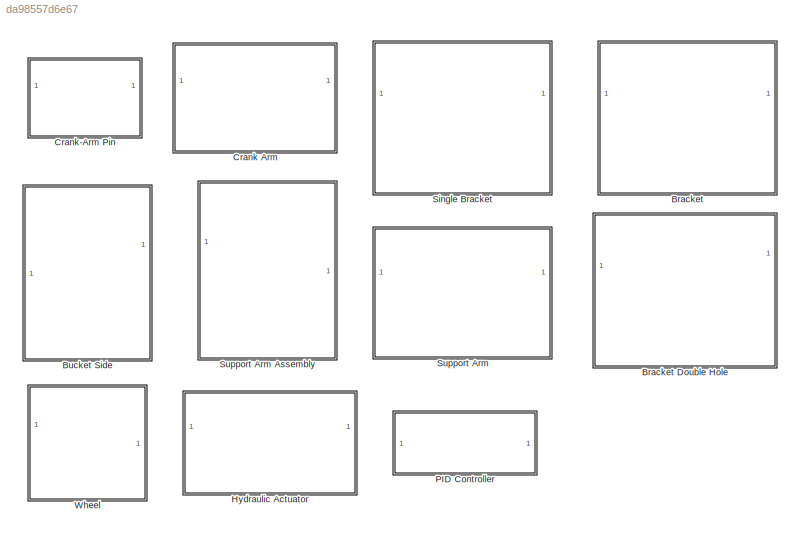
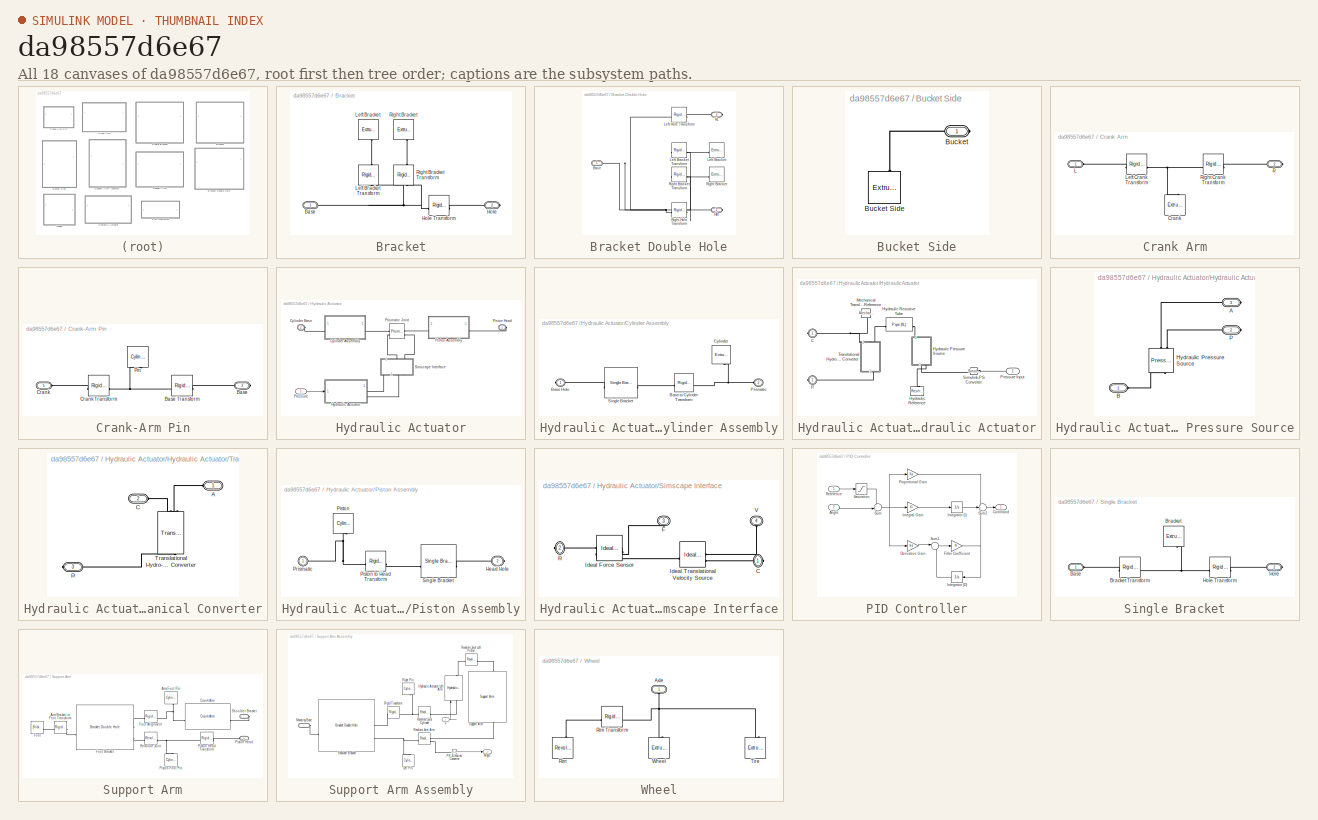
[diagram: thumbnail index - all 18 canvases of the model, root first then tree order]
MODEL slx_da98557d6e67
KIND library
CONFIG EnableMultiTasking = on
CONFIG SolverName = ode45
BLOCK [SubSystem] Bracket
BLOCK [SubSystem] Bracket Double Hole
BLOCK [PMIOPort] Bracket Double Hole/Base
  Side = Left
BLOCK [PMIOPort] Bracket Double Hole/HL
  Port = 3
  Side = Right
BLOCK [PMIOPort] Bracket Double Hole/HR
  Port = 2
  Side = Right
BLOCK [Reference] Bracket Double Hole/Left Bracket  REF=sm_lib/Body Elements/Extruded Solid
  NameLocation = top
  SourceBlock = sm_lib/Body Elements/Extruded Solid
  SourceType = Extruded Solid
BLOCK [Reference] Bracket Double Hole/Left Bracket Transform  REF=sm_lib/Frames and
Transforms/Rigid
Transform
  NameLocation = top
  SourceBlock = sm_lib/Frames and\nTransforms/Rigid\nTransform
  SourceType = Rigid\nTransform
BLOCK [Reference] Bracket Double Hole/Left Hole Transform  REF=sm_lib/Frames and
Transforms/Rigid
Transform
  SourceBlock = sm_lib/Frames and\nTransforms/Rigid\nTransform
  SourceType = Rigid\nTransform
BLOCK [Reference] Bracket Double Hole/Right Bracket  REF=sm_lib/Body Elements/Extruded Solid
  SourceBlock = sm_lib/Body Elements/Extruded Solid
  SourceType = Extruded Solid
BLOCK [Reference] Bracket Double Hole/Right Bracket Transform  REF=sm_lib/Frames and
Transforms/Rigid
Transform
  SourceBlock = sm_lib/Frames and\nTransforms/Rigid\nTransform
  SourceType = Rigid\nTransform
BLOCK [Reference] Bracket Double Hole/Right Hole Transform  REF=sm_lib/Frames and
Transforms/Rigid
Transform
  SourceBlock = sm_lib/Frames and\nTransforms/Rigid\nTransform
  SourceType = Rigid\nTransform
BLOCK [PMIOPort] Bracket/Base
  Side = Left
BLOCK [PMIOPort] Bracket/Hole
  NameLocation = top
  Port = 2
  Side = Right
BLOCK [Reference] Bracket/Hole Transform  REF=sm_lib/Frames and
Transforms/Rigid
Transform
  SourceBlock = sm_lib/Frames and\nTransforms/Rigid\nTransform
  SourceType = Rigid\nTransform
BLOCK [Reference] Bracket/Left Bracket  REF=sm_lib/Body Elements/Extruded Solid
  NameLocation = left
  SourceBlock = sm_lib/Body Elements/Extruded Solid
  SourceType = Extruded Solid
BLOCK [Reference] Bracket/Left Bracket Transform  REF=sm_lib/Frames and
Transforms/Rigid
Transform
  NameLocation = left
  SourceBlock = sm_lib/Frames and\nTransforms/Rigid\nTransform
  SourceType = Rigid\nTransform
BLOCK [Reference] Bracket/Right Bracket  REF=sm_lib/Body Elements/Extruded Solid
  NameLocation = right
  SourceBlock = sm_lib/Body Elements/Extruded Solid
  SourceType = Extruded Solid
BLOCK [Reference] Bracket/Right Bracket Transform  REF=sm_lib/Frames and
Transforms/Rigid
Transform
  NameLocation = right
  SourceBlock = sm_lib/Frames and\nTransforms/Rigid\nTransform
  SourceType = Rigid\nTransform
BLOCK [SubSystem] Bucket Side
BLOCK [PMIOPort] Bucket Side/Bucket
  Side = Right
BLOCK [Reference] Bucket Side/Bucket Side  REF=sm_lib/Body Elements/Extruded Solid
  NameLocation = left
  SourceBlock = sm_lib/Body Elements/Extruded Solid
  SourceType = Extruded Solid
BLOCK [SubSystem] Crank Arm
BLOCK [Reference] Crank Arm/Crank  REF=sm_lib/Body Elements/Extruded Solid
  NameLocation = right
  SourceBlock = sm_lib/Body Elements/Extruded Solid
  SourceType = Extruded Solid
BLOCK [PMIOPort] Crank Arm/L
  Side = Left
BLOCK [Reference] Crank Arm/Left Crank Transform  REF=sm_lib/Frames and
Transforms/Rigid
Transform
  SourceBlock = sm_lib/Frames and\nTransforms/Rigid\nTransform
  SourceType = Rigid\nTransform
BLOCK [PMIOPort] Crank Arm/R
  Port = 2
  Side = Right
BLOCK [Reference] Crank Arm/Right Crank Transform  REF=sm_lib/Frames and
Transforms/Rigid
Transform
  SourceBlock = sm_lib/Frames and\nTransforms/Rigid\nTransform
  SourceType = Rigid\nTransform
BLOCK [SubSystem] Crank-Arm Pin
BLOCK [PMIOPort] Crank-Arm Pin/Base
  Port = 2
  Side = Right
BLOCK [Reference] Crank-Arm Pin/Base Transform  REF=sm_lib/Frames and
Transforms/Rigid
Transform
  SourceBlock = sm_lib/Frames and\nTransforms/Rigid\nTransform
  SourceType = Rigid\nTransform
BLOCK [PMIOPort] Crank-Arm Pin/Crank
  Side = Left
BLOCK [Reference] Crank-Arm Pin/Crank Transform  REF=sm_lib/Frames and
Transforms/Rigid
Transform
  SourceBlock = sm_lib/Frames and\nTransforms/Rigid\nTransform
  SourceType = Rigid\nTransform
BLOCK [Reference] Crank-Arm Pin/Pin  REF=sm_lib/Body Elements/Cylindrical Solid
  NameLocation = right
  SourceBlock = sm_lib/Body Elements/Cylindrical Solid
  SourceType = Cylindrical Solid
BLOCK [SubSystem] Hydraulic Actuator
BLOCK [SubSystem] Hydraulic Actuator/Cylinder Assembly
  NameLocation = top
BLOCK [PMIOPort] Hydraulic Actuator/Cylinder Assembly/Base Hole
  NameLocation = top
  Side = Right
BLOCK [Reference] Hydraulic Actuator/Cylinder Assembly/Base to Cylinder Transform  REF=sm_lib/Frames and
Transforms/Rigid
Transform
  SourceBlock = sm_lib/Frames and\nTransforms/Rigid\nTransform
  SourceType = Rigid\nTransform
BLOCK [Reference] Hydraulic Actuator/Cylinder Assembly/Cylinder  REF=sm_lib/Body Elements/Extruded Solid
  NameLocation = left
  SourceBlock = sm_lib/Body Elements/Extruded Solid
  SourceType = Extruded Solid
BLOCK [PMIOPort] Hydraulic Actuator/Cylinder Assembly/Prismatic
  NameLocation = top
  Port = 2
  Side = Left
BLOCK [Reference] Hydraulic Actuator/Cylinder Assembly/Single Bracket  REF=$bdroot/Single Bracket
  NameLocation = top
  SourceBlock = $bdroot/Single Bracket
  SourceType = Single Bracket
BLOCK [PMIOPort] Hydraulic Actuator/Cylinder Base
  NameLocation = top
  Port = 2
  Side = Left
BLOCK [SubSystem] Hydraulic Actuator/Hydraulic Actuator
  NameLocation = top
BLOCK [PMIOPort] Hydraulic Actuator/Hydraulic Actuator/C
  Side = Right
BLOCK [SubSystem] Hydraulic Actuator/Hydraulic Actuator/Hydraulic Pressure Source
BLOCK [PMIOPort] Hydraulic Actuator/Hydraulic Actuator/Hydraulic Pressure Source/A
  Port = 3
  Side = Right
BLOCK [PMIOPort] Hydraulic Actuator/Hydraulic Actuator/Hydraulic Pressure Source/B
  Side = Left
BLOCK [Reference] Hydraulic Actuator/Hydraulic Actuator/Hydraulic Pressure Source/Hydraulic Pressure Source  REF=fl_lib/Isothermal Liquid/Sources/Pressure Source (IL)
  LibrarySourceBlock = fl_lib/Hydraulic/Hydraulic Sources/Hydraulic Pressure\nSource
  NameLocation = right
  SourceBlock = fl_lib/Isothermal Liquid/Sources/Pressure Source (IL)
  SourceType = Pressure Source (IL)
BLOCK [PMIOPort] Hydraulic Actuator/Hydraulic Actuator/Hydraulic Pressure Source/P
  Port = 2
  Side = Right
BLOCK [Reference] Hydraulic Actuator/Hydraulic Actuator/Hydraulic Reference  REF=fl_lib/Isothermal Liquid/Elements/Reservoir (IL)
  LibrarySourceBlock = fl_lib/Hydraulic/Hydraulic Elements/Hydraulic Reference
  NameLocation = right
  SourceBlock = fl_lib/Isothermal Liquid/Elements/Reservoir (IL)
  SourceType = Reservoir (IL)
BLOCK [Reference] Hydraulic Actuator/Hydraulic Actuator/Hydraulic Resistive Tube  REF=fl_lib/Isothermal Liquid/Elements/Pipe (IL)
  LibrarySourceBlock = fl_lib/Hydraulic/Hydraulic Elements/Hydraulic Resistive\nTube
  NameLocation = top
  SourceBlock = fl_lib/Isothermal Liquid/Elements/Pipe (IL)
  SourceType = Pipe (IL)
BLOCK [Reference] Hydraulic Actuator/Hydraulic Actuator/Mechanical Translational Reference  REF=fl_lib/Mechanical/Translational
Elements/Mechanical
Translational
Reference
  NameLocation = left
  SourceBlock = fl_lib/Mechanical/Translational\nElements/Mechanical\nTranslational\nReference
  SourceType = Mechanical\nTranslational\nReference
BLOCK [Inport] Hydraulic Actuator/Hydraulic Actuator/Pressure Input
BLOCK [PMIOPort] Hydraulic Actuator/Hydraulic Actuator/R
  Port = 2
  Side = Right
BLOCK [Reference] Hydraulic Actuator/Hydraulic Actuator/Simulink-PS Converter  REF=nesl_utility/Simulink-PS
Converter
  NameLocation = top
  SourceBlock = nesl_utility/Simulink-PS\nConverter
  SourceType = Simulink-PS\nConverter
BLOCK [SubSystem] Hydraulic Actuator/Hydraulic Actuator/Translational Hydro-Mechanical Converter
BLOCK [PMIOPort] Hydraulic Actuator/Hydraulic Actuator/Translational Hydro-Mechanical Converter/A
  Side = Left
BLOCK [PMIOPort] Hydraulic Actuator/Hydraulic Actuator/Translational Hydro-Mechanical Converter/C
  Port = 2
  Side = Left
BLOCK [PMIOPort] Hydraulic Actuator/Hydraulic Actuator/Translational Hydro-Mechanical Converter/R
  Port = 3
  Side = Right
BLOCK [Reference] Hydraulic Actuator/Hydraulic Actuator/Translational Hydro-Mechanical Converter/Translational Hydro-Mechanical Converter  REF=fl_lib/Isothermal Liquid/Elements/Translational
Mechanical Converter
(IL)
  LibrarySourceBlock = fl_lib/Hydraulic/Hydraulic Elements/Translational\nHydro-Mechanical\nConverter
  NameLocation = left
  SourceBlock = fl_lib/Isothermal Liquid/Elements/Translational\nMechanical Converter\n(IL)
  SourceType = Translational\nMechanical Converter\n(IL)
BLOCK [SubSystem] Hydraulic Actuator/Piston Assembly
BLOCK [PMIOPort] Hydraulic Actuator/Piston Assembly/Head Hole
  NameLocation = top
  Port = 2
  Side = Right
BLOCK [Reference] Hydraulic Actuator/Piston Assembly/Piston  REF=sm_lib/Body Elements/Cylindrical Solid
  NameLocation = left
  SourceBlock = sm_lib/Body Elements/Cylindrical Solid
  SourceType = Cylindrical Solid
BLOCK [Reference] Hydraulic Actuator/Piston Assembly/Piston to Head Transform  REF=sm_lib/Frames and
Transforms/Rigid
Transform
  SourceBlock = sm_lib/Frames and\nTransforms/Rigid\nTransform
  SourceType = Rigid\nTransform
BLOCK [PMIOPort] Hydraulic Actuator/Piston Assembly/Prismatic
  NameLocation = top
  Side = Left
BLOCK [Reference] Hydraulic Actuator/Piston Assembly/Single Bracket  REF=$bdroot/Single Bracket
  SourceBlock = $bdroot/Single Bracket
  SourceType = Single Bracket
BLOCK [PMIOPort] Hydraulic Actuator/Piston Head
  NameLocation = top
  Side = Right
BLOCK [Inport] Hydraulic Actuator/Pressure
BLOCK [Reference] Hydraulic Actuator/Prismatic  Joint  REF=sm_lib/Joints/Prismatic
Joint
  SourceBlock = sm_lib/Joints/Prismatic\nJoint
  SourceType = Prismatic\nJoint
BLOCK [SubSystem] Hydraulic Actuator/Simscape Interface
  NameLocation = right
BLOCK [PMIOPort] Hydraulic Actuator/Simscape Interface/C
  Side = Right
BLOCK [PMIOPort] Hydraulic Actuator/Simscape Interface/F
  NameLocation = left
  Port = 3
  Side = Left
BLOCK [Reference] Hydraulic Actuator/Simscape Interface/Ideal Force Sensor  REF=fl_lib/Mechanical/Mechanical Sensors/Ideal Force Sensor
  NameLocation = top
  SourceBlock = fl_lib/Mechanical/Mechanical Sensors/Ideal Force Sensor
  SourceType = Ideal Force Sensor
BLOCK [Reference] Hydraulic Actuator/Simscape Interface/Ideal Translational Velocity Source  REF=fl_lib/Mechanical/Mechanical Sources/Ideal Translational
Velocity Source
  SourceBlock = fl_lib/Mechanical/Mechanical Sources/Ideal Translational\nVelocity Source
  SourceType = Ideal Translational\nVelocity Source
BLOCK [PMIOPort] Hydraulic Actuator/Simscape Interface/R
  Port = 2
  Side = Right
BLOCK [PMIOPort] Hydraulic Actuator/Simscape Interface/V
  NameLocation = left
  Port = 4
  Side = Left
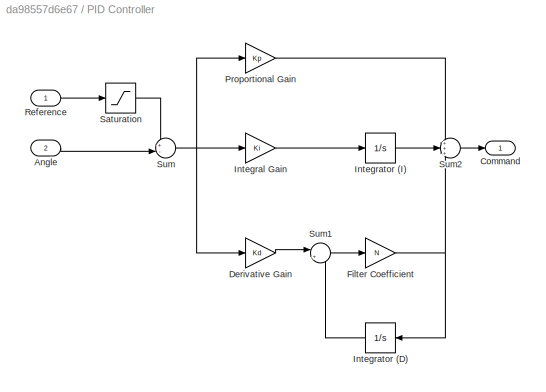
BLOCK [SubSystem] PID Controller
BLOCK [Inport] PID Controller/Angle
  Port = 2
BLOCK [Outport] PID Controller/Command
  VectorParamsAs1DForOutWhenUnconnected = off
BLOCK [Gain] PID Controller/Derivative Gain
  Gain = Kd
BLOCK [Gain] PID Controller/Filter Coefficient
  Gain = N
BLOCK [Gain] PID Controller/Integral Gain
  Gain = Ki
BLOCK [Integrator] PID Controller/Integrator (D)
BLOCK [Integrator] PID Controller/Integrator (I)
BLOCK [Gain] PID Controller/Proportional Gain
  Gain = Kp
BLOCK [Inport] PID Controller/Reference
  NameLocation = top
BLOCK [Saturate] PID Controller/Saturation
  LowerLimit = lowerLim
  NameLocation = top
  UpperLimit = upperLim
BLOCK [Sum] PID Controller/Sum
  Inputs = +-|
BLOCK [Sum] PID Controller/Sum1
  Inputs = |+-
BLOCK [Sum] PID Controller/Sum2
  Inputs = +++
BLOCK [SubSystem] Single Bracket
BLOCK [PMIOPort] Single Bracket/Base
  Side = Left
BLOCK [Reference] Single Bracket/Bracket  REF=sm_lib/Body Elements/Extruded Solid
  NameLocation = left
  SourceBlock = sm_lib/Body Elements/Extruded Solid
  SourceType = Extruded Solid
BLOCK [Reference] Single Bracket/Bracket Transform  REF=sm_lib/Frames and
Transforms/Rigid
Transform
  SourceBlock = sm_lib/Frames and\nTransforms/Rigid\nTransform
  SourceType = Rigid\nTransform
BLOCK [PMIOPort] Single Bracket/Hole
  NameLocation = top
  Port = 2
  Side = Right
BLOCK [Reference] Single Bracket/Hole Transform  REF=sm_lib/Frames and
Transforms/Rigid
Transform
  SourceBlock = sm_lib/Frames and\nTransforms/Rigid\nTransform
  SourceType = Rigid\nTransform
BLOCK [SubSystem] Support Arm
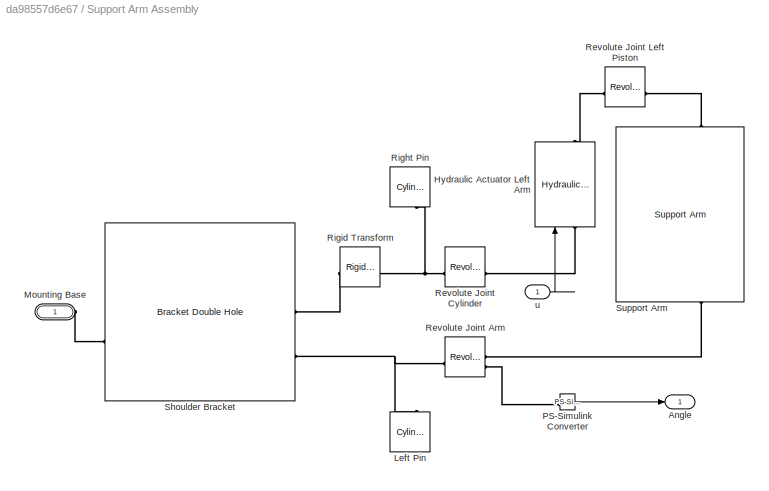
BLOCK [SubSystem] Support Arm Assembly
BLOCK [Outport] Support Arm Assembly/Angle
  VectorParamsAs1DForOutWhenUnconnected = off
BLOCK [Reference] Support Arm Assembly/Hydraulic Actuator Left Arm  REF=$bdroot/Hydraulic Actuator
  NameLocation = left
  SourceBlock = $bdroot/Hydraulic Actuator
  SourceType = Hydraulic Actuator
BLOCK [Reference] Support Arm Assembly/Left Pin  REF=sm_lib/Body Elements/Cylindrical Solid
  NameLocation = right
  SourceBlock = sm_lib/Body Elements/Cylindrical Solid
  SourceType = Cylindrical Solid
BLOCK [PMIOPort] Support Arm Assembly/Mounting Base
  NameLocation = top
  Side = Left
BLOCK [Reference] Support Arm Assembly/PS-Simulink Converter  REF=nesl_utility/PS-Simulink
Converter
  SourceBlock = nesl_utility/PS-Simulink\nConverter
  SourceType = PS-Simulink\nConverter
BLOCK [Reference] Support Arm Assembly/Revolute Joint Arm  REF=sm_lib/Joints/Revolute Joint
  SourceBlock = sm_lib/Joints/Revolute Joint
  SourceType = Revolute Joint
BLOCK [Reference] Support Arm Assembly/Revolute Joint Cylinder  REF=sm_lib/Joints/Revolute Joint
  SourceBlock = sm_lib/Joints/Revolute Joint
  SourceType = Revolute Joint
BLOCK [Reference] Support Arm Assembly/Revolute Joint Left Piston  REF=sm_lib/Joints/Revolute Joint
  NameLocation = top
  SourceBlock = sm_lib/Joints/Revolute Joint
  SourceType = Revolute Joint
BLOCK [Reference] Support Arm Assembly/Right Pin  REF=sm_lib/Body Elements/Cylindrical Solid
  NameLocation = right
  SourceBlock = sm_lib/Body Elements/Cylindrical Solid
  SourceType = Cylindrical Solid
BLOCK [Reference] Support Arm Assembly/Rigid Transform  REF=sm_lib/Frames and
Transforms/Rigid
Transform
  SourceBlock = sm_lib/Frames and\nTransforms/Rigid\nTransform
  SourceType = Rigid\nTransform
BLOCK [Reference] Support Arm Assembly/Shoulder Bracket  REF=$bdroot/Bracket Double Hole
  SourceBlock = $bdroot/Bracket Double Hole
  SourceType = Bracket Double Hole
BLOCK [Reference] Support Arm Assembly/Support Arm  REF=$bdroot/Support Arm
  NameLocation = right
  SourceBlock = $bdroot/Support Arm
  SourceType = Support Arm
BLOCK [Inport] Support Arm Assembly/u
  NameLocation = top
BLOCK [Reference] Support Arm/Arm Bracket to Foot Transform  REF=sm_lib/Frames and
Transforms/Rigid
Transform
  SourceBlock = sm_lib/Frames and\nTransforms/Rigid\nTransform
  SourceType = Rigid\nTransform
BLOCK [Reference] Support Arm/Arm-Foot Pin  REF=sm_lib/Body Elements/Cylindrical Solid
  NameLocation = right
  SourceBlock = sm_lib/Body Elements/Cylindrical Solid
  SourceType = Cylindrical Solid
BLOCK [Reference] Support Arm/Crank Arm  REF=$bdroot/Crank Arm
  NameLocation = top
  SourceBlock = $bdroot/Crank Arm
  SourceType = Crank Arm
BLOCK [Reference] Support Arm/Foot  REF=sm_lib/Body Elements/Brick Solid
  SourceBlock = sm_lib/Body Elements/Brick Solid
  SourceType = Brick Solid
BLOCK [Reference] Support Arm/Foot Alignment  REF=sm_lib/Frames and
Transforms/Rigid
Transform
  NameLocation = top
  SourceBlock = sm_lib/Frames and\nTransforms/Rigid\nTransform
  SourceType = Rigid\nTransform
BLOCK [Reference] Support Arm/Foot Bracket  REF=$bdroot/Bracket Double Hole
  SourceBlock = $bdroot/Bracket Double Hole
  SourceType = Bracket Double Hole
BLOCK [PMIOPort] Support Arm/Piston Head
  Port = 2
  Side = Left
BLOCK [Reference] Support Arm/Piston Head Transform  REF=sm_lib/Frames and
Transforms/Rigid
Transform
  SourceBlock = sm_lib/Frames and\nTransforms/Rigid\nTransform
  SourceType = Rigid\nTransform
BLOCK [Reference] Support Arm/Piston-Foot Pin  REF=sm_lib/Body Elements/Cylindrical Solid
  NameLocation = right
  SourceBlock = sm_lib/Body Elements/Cylindrical Solid
  SourceType = Cylindrical Solid
BLOCK [Reference] Support Arm/Revolute Joint  REF=sm_lib/Joints/Revolute Joint
  SourceBlock = sm_lib/Joints/Revolute Joint
  SourceType = Revolute Joint
BLOCK [PMIOPort] Support Arm/Shoulder Bracket
  NameLocation = top
  Side = Right
BLOCK [SubSystem] Wheel
BLOCK [PMIOPort] Wheel/Axle
  NameLocation = right
  Side = Left
BLOCK [Reference] Wheel/Rim  REF=sm_lib/Body Elements/Revolved Solid
  NameLocation = right
  SourceBlock = sm_lib/Body Elements/Revolved Solid
  SourceType = Revolved Solid
BLOCK [Reference] Wheel/Rim  Transform  REF=sm_lib/Frames and
Transforms/Rigid
Transform
  NameLocation = top
  SourceBlock = sm_lib/Frames and\nTransforms/Rigid\nTransform
  SourceType = Rigid\nTransform
BLOCK [Reference] Wheel/Tire  REF=sm_lib/Body Elements/Extruded Solid
  NameLocation = right
  SourceBlock = sm_lib/Body Elements/Extruded Solid
  SourceType = Extruded Solid
BLOCK [Reference] Wheel/Wheel  REF=sm_lib/Body Elements/Extruded Solid
  NameLocation = right
  SourceBlock = sm_lib/Body Elements/Extruded Solid
  SourceType = Extruded Solid
LINE Hydraulic Actuator/Hydraulic Actuator/Pressure Input:1 -> Hydraulic Actuator/Hydraulic Actuator/Simulink-PS Converter:1
LINE Hydraulic Actuator/Pressure:1 -> Hydraulic Actuator/Hydraulic Actuator:1
LINE PID Controller/Angle:1 -> PID Controller/Sum:2
LINE PID Controller/Derivative Gain:1 -> PID Controller/Sum1:1
NET PID Controller/Filter Coefficient:1 -> PID Controller/Integrator (D):1, PID Controller/Sum2:3
LINE PID Controller/Integral Gain:1 -> PID Controller/Integrator (I):1
LINE PID Controller/Integrator (D):1 -> PID Controller/Sum1:2
LINE PID Controller/Integrator (I):1 -> PID Controller/Sum2:2
LINE PID Controller/Proportional Gain:1 -> PID Controller/Sum2:1
LINE PID Controller/Reference:1 -> PID Controller/Saturation:1
LINE PID Controller/Saturation:1 -> PID Controller/Sum:1
LINE PID Controller/Sum1:1 -> PID Controller/Filter Coefficient:1
LINE PID Controller/Sum2:1 -> PID Controller/Command:1
NET PID Controller/Sum:1 -> PID Controller/Derivative Gain:1, PID Controller/Integral Gain:1, PID Controller/Proportional Gain:1
LINE Support Arm Assembly/PS-Simulink Converter:1 -> Support Arm Assembly/Angle:1
LINE Support Arm Assembly/u:1 -> Support Arm Assembly/Hydraulic Actuator Left Arm:1
PNET net1: Bracket Double Hole/Base:RConn1 -- Bracket Double Hole/Left Bracket Transform:LConn1 -- Bracket Double Hole/Left Hole Transform:LConn1 -- Bracket Double Hole/Right Bracket Transform:LConn1 -- Bracket Double Hole/Right Hole Transform:LConn1
PLINE Bracket Double Hole/HL:RConn1 -- Bracket Double Hole/Left Hole Transform:RConn1
PLINE Bracket Double Hole/HR:RConn1 -- Bracket Double Hole/Right Hole Transform:RConn1
PLINE Bracket Double Hole/Left Bracket Transform:RConn1 -- Bracket Double Hole/Left Bracket:RConn1
PLINE Bracket Double Hole/Right Bracket Transform:RConn1 -- Bracket Double Hole/Right Bracket:RConn1
PNET net2: Bracket/Base:RConn1 -- Bracket/Hole Transform:LConn1 -- Bracket/Left Bracket Transform:LConn1 -- Bracket/Right Bracket Transform:LConn1
PLINE Bracket/Hole Transform:RConn1 -- Bracket/Hole:RConn1
PLINE Bracket/Left Bracket Transform:RConn1 -- Bracket/Left Bracket:RConn1
PLINE Bracket/Right Bracket Transform:RConn1 -- Bracket/Right Bracket:RConn1
PLINE Bucket Side/Bucket Side:RConn1 -- Bucket Side/Bucket:RConn1
PNET net3: Crank Arm/Crank:RConn1 -- Crank Arm/Left Crank Transform:LConn1 -- Crank Arm/Right Crank Transform:LConn1
PLINE Crank Arm/L:RConn1 -- Crank Arm/Left Crank Transform:RConn1
PLINE Crank Arm/R:RConn1 -- Crank Arm/Right Crank Transform:RConn1
PNET net4: Crank-Arm Pin/Base Transform:LConn1 -- Crank-Arm Pin/Crank Transform:LConn1 -- Crank-Arm Pin/Pin:RConn1
PLINE Crank-Arm Pin/Base Transform:RConn1 -- Crank-Arm Pin/Base:RConn1
PLINE Crank-Arm Pin/Crank Transform:RConn1 -- Crank-Arm Pin/Crank:RConn1
PLINE Hydraulic Actuator/Cylinder Assembly/Base Hole:RConn1 -- Hydraulic Actuator/Cylinder Assembly/Single Bracket:RConn1
PNET net5: Hydraulic Actuator/Cylinder Assembly/Base to Cylinder Transform:LConn1 -- Hydraulic Actuator/Cylinder Assembly/Cylinder:RConn1 -- Hydraulic Actuator/Cylinder Assembly/Prismatic:RConn1
PLINE Hydraulic Actuator/Cylinder Assembly/Base to Cylinder Transform:RConn1 -- Hydraulic Actuator/Cylinder Assembly/Single Bracket:LConn1
PLINE Hydraulic Actuator/Cylinder Assembly:LConn1 -- Hydraulic Actuator/Prismatic  Joint:LConn1
PLINE Hydraulic Actuator/Cylinder Assembly:RConn1 -- Hydraulic Actuator/Cylinder Base:RConn1
PNET net6: Hydraulic Actuator/Hydraulic Actuator/C:RConn1 -- Hydraulic Actuator/Hydraulic Actuator/Mechanical Translational Reference:LConn1 -- Hydraulic Actuator/Hydraulic Actuator/Translational Hydro-Mechanical Converter:LConn2
PLINE Hydraulic Actuator/Hydraulic Actuator/Hydraulic Pressure Source/A:RConn1 -- Hydraulic Actuator/Hydraulic Actuator/Hydraulic Pressure Source/Hydraulic Pressure Source:LConn1
PLINE Hydraulic Actuator/Hydraulic Actuator/Hydraulic Pressure Source/B:RConn1 -- Hydraulic Actuator/Hydraulic Actuator/Hydraulic Pressure Source/Hydraulic Pressure Source:RConn1
PLINE Hydraulic Actuator/Hydraulic Actuator/Hydraulic Pressure Source/Hydraulic Pressure Source:LConn2 -- Hydraulic Actuator/Hydraulic Actuator/Hydraulic Pressure Source/P:RConn1
PLINE Hydraulic Actuator/Hydraulic Actuator/Hydraulic Pressure Source:LConn1 -- Hydraulic Actuator/Hydraulic Actuator/Hydraulic Resistive Tube:RConn1
PLINE Hydraulic Actuator/Hydraulic Actuator/Hydraulic Pressure Source:RConn1 -- Hydraulic Actuator/Hydraulic Actuator/Simulink-PS Converter:RConn1
PLINE Hydraulic Actuator/Hydraulic Actuator/Hydraulic Pressure Source:RConn2 -- Hydraulic Actuator/Hydraulic Actuator/Hydraulic Reference:LConn1
PLINE Hydraulic Actuator/Hydraulic Actuator/Hydraulic Resistive Tube:LConn1 -- Hydraulic Actuator/Hydraulic Actuator/Translational Hydro-Mechanical Converter:LConn1
PLINE Hydraulic Actuator/Hydraulic Actuator/R:RConn1 -- Hydraulic Actuator/Hydraulic Actuator/Translational Hydro-Mechanical Converter:RConn1
PLINE Hydraulic Actuator/Hydraulic Actuator/Translational Hydro-Mechanical Converter/A:RConn1 -- Hydraulic Actuator/Hydraulic Actuator/Translational Hydro-Mechanical Converter/Translational Hydro-Mechanical Converter:LConn1
PLINE Hydraulic Actuator/Hydraulic Actuator/Translational Hydro-Mechanical Converter/C:RConn1 -- Hydraulic Actuator/Hydraulic Actuator/Translational Hydro-Mechanical Converter/Translational Hydro-Mechanical Converter:LConn2
PLINE Hydraulic Actuator/Hydraulic Actuator/Translational Hydro-Mechanical Converter/R:RConn1 -- Hydraulic Actuator/Hydraulic Actuator/Translational Hydro-Mechanical Converter/Translational Hydro-Mechanical Converter:RConn1
PLINE Hydraulic Actuator/Hydraulic Actuator:RConn1 -- Hydraulic Actuator/Simscape Interface:RConn1
PLINE Hydraulic Actuator/Hydraulic Actuator:RConn2 -- Hydraulic Actuator/Simscape Interface:RConn2
PLINE Hydraulic Actuator/Piston Assembly/Head Hole:RConn1 -- Hydraulic Actuator/Piston Assembly/Single Bracket:RConn1
PNET net7: Hydraulic Actuator/Piston Assembly/Piston to Head Transform:LConn1 -- Hydraulic Actuator/Piston Assembly/Piston:RConn1 -- Hydraulic Actuator/Piston Assembly/Prismatic:RConn1
PLINE Hydraulic Actuator/Piston Assembly/Piston to Head Transform:RConn1 -- Hydraulic Actuator/Piston Assembly/Single Bracket:LConn1
PLINE Hydraulic Actuator/Piston Assembly:LConn1 -- Hydraulic Actuator/Prismatic  Joint:RConn1
PLINE Hydraulic Actuator/Piston Assembly:RConn1 -- Hydraulic Actuator/Piston Head:RConn1
PLINE Hydraulic Actuator/Prismatic  Joint:LConn2 -- Hydraulic Actuator/Simscape Interface:LConn1
PLINE Hydraulic Actuator/Prismatic  Joint:RConn2 -- Hydraulic Actuator/Simscape Interface:LConn2
PLINE Hydraulic Actuator/Simscape Interface/C:RConn1 -- Hydraulic Actuator/Simscape Interface/Ideal Translational Velocity Source:RConn2
PLINE Hydraulic Actuator/Simscape Interface/F:RConn1 -- Hydraulic Actuator/Simscape Interface/Ideal Force Sensor:RConn2
PLINE Hydraulic Actuator/Simscape Interface/Ideal Force Sensor:LConn1 -- Hydraulic Actuator/Simscape Interface/R:RConn1
PLINE Hydraulic Actuator/Simscape Interface/Ideal Force Sensor:RConn1 -- Hydraulic Actuator/Simscape Interface/Ideal Translational Velocity Source:LConn1
PLINE Hydraulic Actuator/Simscape Interface/Ideal Translational Velocity Source:RConn1 -- Hydraulic Actuator/Simscape Interface/V:RConn1
PLINE Single Bracket/Base:RConn1 -- Single Bracket/Bracket Transform:LConn1
PNET net8: Single Bracket/Bracket Transform:RConn1 -- Single Bracket/Bracket:RConn1 -- Single Bracket/Hole Transform:LConn1
PLINE Single Bracket/Hole Transform:RConn1 -- Single Bracket/Hole:RConn1
PLINE Support Arm Assembly/Hydraulic Actuator Left Arm:LConn1 -- Support Arm Assembly/Revolute Joint Cylinder:RConn1
PLINE Support Arm Assembly/Hydraulic Actuator Left Arm:RConn1 -- Support Arm Assembly/Revolute Joint Left Piston:RConn1
PNET net9: Support Arm Assembly/Left Pin:RConn1 -- Support Arm Assembly/Revolute Joint Arm:LConn1 -- Support Arm Assembly/Shoulder Bracket:RConn2
PLINE Support Arm Assembly/Mounting Base:RConn1 -- Support Arm Assembly/Shoulder Bracket:LConn1
PLINE Support Arm Assembly/PS-Simulink Converter:LConn1 -- Support Arm Assembly/Revolute Joint Arm:RConn2
PLINE Support Arm Assembly/Revolute Joint Arm:RConn1 -- Support Arm Assembly/Support Arm:RConn1
PNET net10: Support Arm Assembly/Revolute Joint Cylinder:LConn1 -- Support Arm Assembly/Right Pin:RConn1 -- Support Arm Assembly/Rigid Transform:RConn1
PLINE Support Arm Assembly/Revolute Joint Left Piston:LConn1 -- Support Arm Assembly/Support Arm:LConn1
PLINE Support Arm Assembly/Rigid Transform:LConn1 -- Support Arm Assembly/Shoulder Bracket:RConn1
PLINE Support Arm/Arm Bracket to Foot Transform:LConn1 -- Support Arm/Foot Bracket:LConn1
PLINE Support Arm/Arm Bracket to Foot Transform:RConn1 -- Support Arm/Foot:RConn1
PNET net11: Support Arm/Arm-Foot Pin:RConn1 -- Support Arm/Crank Arm:LConn1 -- Support Arm/Foot Alignment:RConn1
PLINE Support Arm/Crank Arm:RConn1 -- Support Arm/Shoulder Bracket:RConn1
PLINE Support Arm/Foot Alignment:LConn1 -- Support Arm/Foot Bracket:RConn1
PLINE Support Arm/Foot Bracket:RConn2 -- Support Arm/Revolute Joint:LConn1
PNET net12: Support Arm/Piston Head Transform:LConn1 -- Support Arm/Piston-Foot Pin:RConn1 -- Support Arm/Revolute Joint:RConn1
PLINE Support Arm/Piston Head Transform:RConn1 -- Support Arm/Piston Head:RConn1
PNET net13: Wheel/Axle:RConn1 -- Wheel/Rim  Transform:LConn1 -- Wheel/Tire:RConn1 -- Wheel/Wheel:RConn1
PLINE Wheel/Rim  Transform:RConn1 -- Wheel/Rim:RConn1
note: NET lines group one-source signal fan-out (src -> all destinations, sorted); 1:1 wires keep LINE; PNET lines group multi-terminal physical nets as a canonical sorted terminal list (undirected conserving connections); 2-terminal nets keep the pairwise PLINE form
